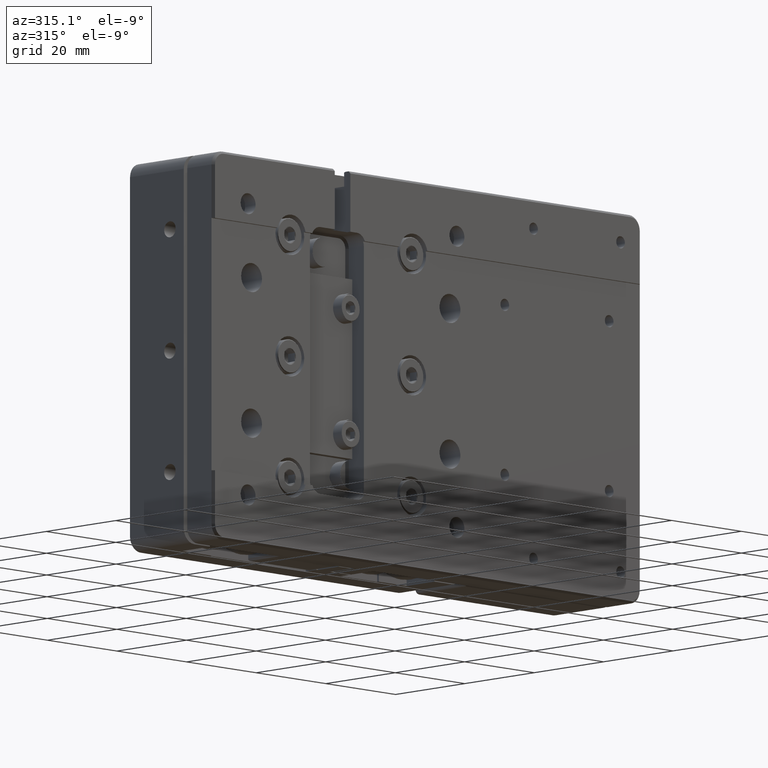
[diagram: clean part render]
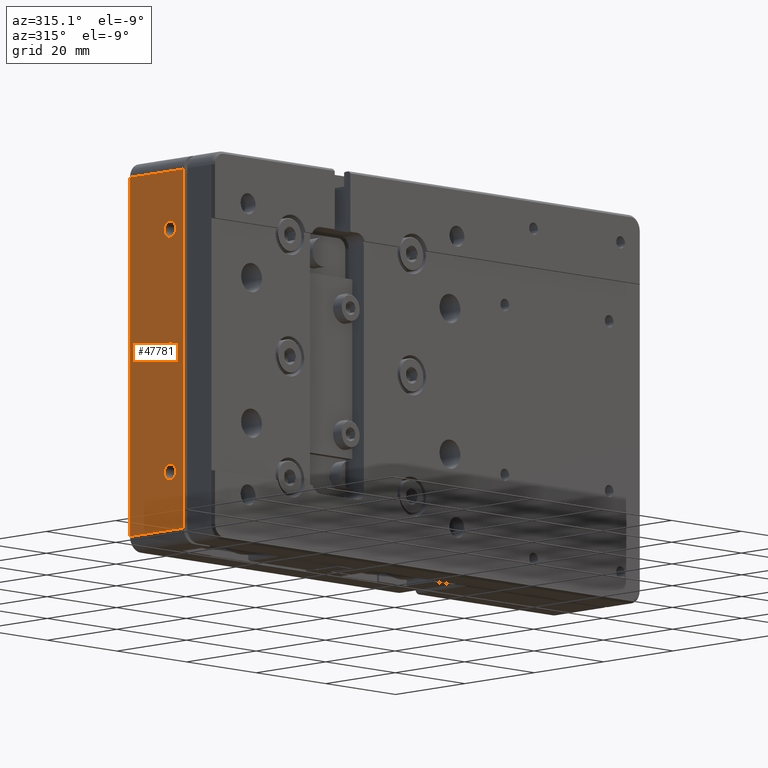
[diagram: same view with one face highlighted and labeled with its STEP entity id]
A machine part, auxiliary view. The second image highlights one B-rep face of the part: STEP entity #47781.
In plain terms, the highlighted planar face has unit normal (-1, 0, 0).
Its self-contained STEP definition (entity closure, byte-faithful):
#203 = CARTESIAN_POINT ( 'NONE',  ( -40.00000000000000000, 3.058924004469735900, -0.8329654315240088100 ) ) ;
#413 = ORIENTED_EDGE ( 'NONE', *, *, #56089, .T. ) ;
#474 = CARTESIAN_POINT ( 'NONE',  ( -40.00000000000000700, 4.929889373667207600, 23.39227319063466500 ) ) ;
#983 = CARTESIAN_POINT ( 'NONE',  ( -40.00000000000000000, 16.30999999999999900, -36.99999997173818400 ) ) ;
#1235 = ORIENTED_EDGE ( 'NONE', *, *, #55200, .T. ) ;
#1788 = B_SPLINE_CURVE_WITH_KNOTS ( 'NONE', 3,
 ( #19302, #39337, #29397, #64686, #34480, #4277, #39549, #9363, #44618, #14438 ),
 .UNSPECIFIED., .F., .F.,
 ( 4, 2, 2, 2, 4 ),
 ( 0.0000000000000000000, 0.2500000000000000000, 0.5000000000000000000, 0.7500000000000000000, 1.000000000000000000 ),
 .UNSPECIFIED. ) ;
#2072 = B_SPLINE_CURVE_WITH_KNOTS ( 'NONE', 3,
 ( #17379, #32545, #47740, #17607 ),
 .UNSPECIFIED., .F., .F.,
 ( 4, 4 ),
 ( 0.0000000000000000000, 1.000000000000000000 ),
 .UNSPECIFIED. ) ;
#2576 = EDGE_CURVE ( 'NONE', #32372, #51437, #26779, .T. ) ;
#3015 = VERTEX_POINT ( 'NONE', #25898 ) ;
#3455 = CARTESIAN_POINT ( 'NONE',  ( -40.00000000000000000, 2.891866257118795000, 0.4296525153654636700 ) ) ;
#3481 = CARTESIAN_POINT ( 'NONE',  ( -40.00000000000000000, 5.940668714406039700, -25.83320281143905500 ) ) ;
#3669 = CARTESIAN_POINT ( 'NONE',  ( -40.00000000000000000, 3.179166168521438100, -26.01241675606890500 ) ) ;
#3998 = CARTESIAN_POINT ( 'NONE',  ( -40.00002008473701700, 16.00001268401944500, 36.99999997929843700 ) ) ;
#4277 = CARTESIAN_POINT ( 'NONE',  ( -40.00000000000000000, 5.512618546438607000, -23.67896437815382900 ) ) ;
#4576 = CARTESIAN_POINT ( 'NONE',  ( -40.00000000000000700, 4.070110626332375900, 26.60772680936630200 ) ) ;
#4801 = EDGE_CURVE ( 'NONE', #45300, #40527, #19238, .T. ) ;
#4827 = CARTESIAN_POINT ( 'NONE',  ( -40.00000000000000000, 4.500000000000000900, 1.649999999999998600 ) ) ;
#4861 = CARTESIAN_POINT ( 'NONE',  ( -40.00000000000000000, 3.666973861529395000, 23.55925816782534500 ) ) ;
#5320 = CARTESIAN_POINT ( 'NONE',  ( -40.00000000000001400, 3.487381453563454900, -1.321035621847881800 ) ) ;
#5573 = CARTESIAN_POINT ( 'NONE',  ( -40.00000000000000000, 5.512416294201096400, 23.67916553507057400 ) ) ;
#6016 = CARTESIAN_POINT ( 'NONE',  ( -39.99999999999999300, 4.500000000000000900, -1.649999999999998600 ) ) ;
#6109 = DIRECTION ( 'NONE',  ( -0.0000000000000000000, -1.000000000000000000, 0.0000000000000000000 ) ) ;
#6242 = EDGE_CURVE ( 'NONE', #31857, #28975, #60181, .T. ) ;
#6769 = FACE_BOUND ( 'NONE', #21030, .T. ) ;
#8449 = CARTESIAN_POINT ( 'NONE',  ( -40.00000000000000000, 2.850000000000001900, -25.00000000000000000 ) ) ;
#8546 = CARTESIAN_POINT ( 'NONE',  ( -40.00000000000000000, 2.850000000000001900, -8.842972376470874500E-016 ) ) ;
#8561 = CARTESIAN_POINT ( 'NONE',  ( -40.00000000000000000, 6.150000000000000400, -25.21917662756495900 ) ) ;
#8745 = CARTESIAN_POINT ( 'NONE',  ( -40.00000000000000000, 3.666973861532512900, -26.44074183217535900 ) ) ;
#8895 = AXIS2_PLACEMENT_3D ( 'NONE', #51391, #56711, #26553 ) ;
#9363 = CARTESIAN_POINT ( 'NONE',  ( -40.00000000000000000, 4.929829188337036400, -23.39193937488811100 ) ) ;
#9668 = CARTESIAN_POINT ( 'NONE',  ( -39.99999999999998600, 3.487583705800479300, 26.32083446492962500 ) ) ;
#9835 = CARTESIAN_POINT ( 'NONE',  ( -40.00000000000000000, 4.500000000000000900, 26.64999999999999900 ) ) ;
#9954 = ORIENTED_EDGE ( 'NONE', *, *, #4801, .T. ) ;
#9956 = CARTESIAN_POINT ( 'NONE',  ( -40.00000000000000000, 4.280646699466616100, 23.35007311776862300 ) ) ;
#10226 = EDGE_CURVE ( 'NONE', #34256, #16964, #34254, .T. ) ;
#10406 = CARTESIAN_POINT ( 'NONE',  ( -40.00000000000001400, 4.070170811663381000, -1.608060625111196000 ) ) ;
#10639 = EDGE_LOOP ( 'NONE', ( #56236, #17916, #20860, #41047 ) ) ;
#10674 = CARTESIAN_POINT ( 'NONE',  ( -40.00000000000000000, 5.940668714406038800, 24.16679718856095200 ) ) ;
#11005 = CARTESIAN_POINT ( 'NONE',  ( -40.00002057467690300, 16.00001207603567700, -36.99999997120557500 ) ) ;
#11023 = EDGE_CURVE ( 'NONE', #59334, #31857, #34106, .T. ) ;
#11089 = CARTESIAN_POINT ( 'NONE',  ( -40.00000000000000000, 5.512416294201777600, -1.320834464928056600 ) ) ;
#11371 = CARTESIAN_POINT ( 'NONE',  ( -39.99999999999999300, 4.500000000000000900, -23.35000000000000100 ) ) ;
#12363 = EDGE_CURVE ( 'NONE', #15331, #46887, #19783, .T. ) ;
#13403 = CARTESIAN_POINT ( 'NONE',  ( -39.99999999999999300, 4.281746719864443700, 1.650072751096525000 ) ) ;
#13826 = CARTESIAN_POINT ( 'NONE',  ( -40.00000000000000000, 4.280646699463496000, -26.64992688223068700 ) ) ;
#13957 = CARTESIAN_POINT ( 'NONE',  ( -40.00000000000000700, 6.107726461760725200, 25.42988989527669800 ) ) ;
#14438 = CARTESIAN_POINT ( 'NONE',  ( -39.99999999999999300, 4.500000000000000900, -23.35000000000000100 ) ) ;
#14738 = CARTESIAN_POINT ( 'NONE',  ( -39.99999999999999300, 3.059331285593963400, 25.83320281144264600 ) ) ;
#15299 = CARTESIAN_POINT ( 'NONE',  ( -40.00000000000000000, 16.30999999999999900, 36.99999998252000200 ) ) ;
#15331 = VERTEX_POINT ( 'NONE', #57739 ) ;
#15491 = CARTESIAN_POINT ( 'NONE',  ( -39.99999999999999300, 4.500000000000000900, -1.649999999999998600 ) ) ;
#15754 = CARTESIAN_POINT ( 'NONE',  ( -40.00000000000000000, 6.150000000000000400, 24.78082337243505900 ) ) ;
#16175 = CARTESIAN_POINT ( 'NONE',  ( -40.00000000000000000, 5.940668714406039700, -0.8332028114387847200 ) ) ;
#16463 = CARTESIAN_POINT ( 'NONE',  ( -39.99999999999999300, 3.667034046862623200, -23.55892435207718800 ) ) ;
#16880 = VECTOR ( 'NONE', #55573, 1000.000000000000000 ) ;
#16964 = VERTEX_POINT ( 'NONE', #28230 ) ;
#17379 = CARTESIAN_POINT ( 'NONE',  ( -40.00002057467690300, 16.00001207603567700, -36.99999997120557500 ) ) ;
#17607 = CARTESIAN_POINT ( 'NONE',  ( -40.00002008473701700, 16.00001268401944500, 36.99999997929843700 ) ) ;
#17916 = ORIENTED_EDGE ( 'NONE', *, *, #35011, .T. ) ;
#18450 = LINE ( 'NONE', #15299, #16880 ) ;
#18511 = CARTESIAN_POINT ( 'NONE',  ( -39.99999999999999300, 4.718253280135846800, -26.65007275109583100 ) ) ;
#18706 = CARTESIAN_POINT ( 'NONE',  ( -40.00000000000000000, 2.850000000000001900, -25.00000000000000000 ) ) ;
#19028 = CARTESIAN_POINT ( 'NONE',  ( -40.00000000000000000, 5.820833831480210400, 26.01241675606692300 ) ) ;
#19238 = B_SPLINE_CURVE_WITH_KNOTS ( 'NONE', 3,
 ( #6016, #51143, #46094, #41256, #11089, #46326, #16175, #51364, #21212, #56461 ),
 .UNSPECIFIED., .F., .F.,
 ( 4, 2, 2, 2, 4 ),
 ( 0.0000000000000000000, 0.2500000000000000000, 0.5000000000000000000, 0.7500000000000000000, 1.000000000000000000 ),
 .UNSPECIFIED. ) ;
#19302 = CARTESIAN_POINT ( 'NONE',  ( -40.00000000000000000, 6.149999999999999500, -25.00000000000000000 ) ) ;
#19783 = B_SPLINE_CURVE_WITH_KNOTS ( 'NONE', 3,
 ( #43580, #13403, #23533, #58786, #28593, #63872, #33674, #3455, #38738, #8546 ),
 .UNSPECIFIED., .F., .F.,
 ( 4, 2, 2, 2, 4 ),
 ( 0.0000000000000000000, 0.2500000000000000000, 0.5000000000000000000, 0.7500000000000000000, 1.000000000000000000 ),
 .UNSPECIFIED. ) ;
#19811 = CARTESIAN_POINT ( 'NONE',  ( -39.99999999999999300, 2.850000000000001400, 25.21917662756135300 ) ) ;
#19843 = CARTESIAN_POINT ( 'NONE',  ( -40.00000000000000700, 6.107726461758055300, 0.4298898952790181100 ) ) ;
#20334 = CARTESIAN_POINT ( 'NONE',  ( -40.00000000000000000, 2.850000000000001900, -8.842972376470874500E-016 ) ) ;
#20860 = ORIENTED_EDGE ( 'NONE', *, *, #2576, .T. ) ;
#21030 = EDGE_LOOP ( 'NONE', ( #1235, #37154, #58277, #9954 ) ) ;
#21212 = CARTESIAN_POINT ( 'NONE',  ( -40.00000000000000000, 6.150000000000000400, -0.2191766275652141900 ) ) ;
#21503 = CARTESIAN_POINT ( 'NONE',  ( -40.00000000000000700, 3.178963916284312900, -23.98738208701570300 ) ) ;
#23533 = CARTESIAN_POINT ( 'NONE',  ( -40.00000000000000700, 4.070110626333168100, 1.607726809366057100 ) ) ;
#23555 = CARTESIAN_POINT ( 'NONE',  ( -39.99999999999999300, 4.500000000000000900, -26.64999999999999900 ) ) ;
#24078 = CARTESIAN_POINT ( 'NONE',  ( -40.00000000000000000, 5.333026138475662300, 26.44074183217327300 ) ) ;
#24130 = EDGE_CURVE ( 'NONE', #28975, #3015, #1788, .T. ) ;
#24648 = CARTESIAN_POINT ( 'NONE',  ( -40.00000000000000000, 4.500000000000000900, 26.64999999999999900 ) ) ;
#24899 = CARTESIAN_POINT ( 'NONE',  ( -40.00000000000000000, 5.820833831479251200, 1.012416756068214900 ) ) ;
#24939 = CARTESIAN_POINT ( 'NONE',  ( -40.00000000000000000, 2.850000000000001900, 25.00000000000000000 ) ) ;
#25898 = CARTESIAN_POINT ( 'NONE',  ( -39.99999999999999300, 4.500000000000000900, -23.35000000000000100 ) ) ;
#26553 = DIRECTION ( 'NONE',  ( 0.0000000000000000000, 0.0000000000000000000, 1.000000000000000000 ) ) ;
#26583 = CARTESIAN_POINT ( 'NONE',  ( -40.00000000000000700, 2.891866257118795000, -24.57034748463523500 ) ) ;
#26612 = ORIENTED_EDGE ( 'NONE', *, *, #55482, .F. ) ;
#26626 = EDGE_CURVE ( 'NONE', #3015, #59334, #63546, .T. ) ;
#26779 = B_SPLINE_CURVE_WITH_KNOTS ( 'NONE', 3,
 ( #24939, #55068, #60173, #29958, #65250, #35041, #4861, #40117, #9956, #45179 ),
 .UNSPECIFIED., .F., .F.,
 ( 4, 2, 2, 2, 4 ),
 ( 0.0000000000000000000, 0.2500000000000000000, 0.5000000000000000000, 0.7500000000000000000, 1.000000000000000000 ),
 .UNSPECIFIED. ) ;
#27479 = EDGE_LOOP ( 'NONE', ( #26612, #43671, #37979, #413 ) ) ;
#27762 = CARTESIAN_POINT ( 'NONE',  ( -40.00000000000000000, 4.500000000000000900, 23.35000000000000100 ) ) ;
#28230 = CARTESIAN_POINT ( 'NONE',  ( -40.00000000000000000, 0.4999999999999998900, 36.99999998208068100 ) ) ;
#28237 = VECTOR ( 'NONE', #6109, 1000.000000000000000 ) ;
#28277 = CARTESIAN_POINT ( 'NONE',  ( -39.99999999999999300, 4.500000000000000900, -1.649999999999998600 ) ) ;
#28427 = B_SPLINE_CURVE_WITH_KNOTS ( 'NONE', 3,
 ( #20334, #45204, #30423, #203, #35500, #5320, #40569, #10406, #45636, #15491 ),
 .UNSPECIFIED., .F., .F.,
 ( 4, 2, 2, 2, 4 ),
 ( 0.0000000000000000000, 0.2500000000000001100, 0.5000000000000002200, 0.7500000000000003300, 1.000000000000000000 ),
 .UNSPECIFIED. ) ;
#28593 = CARTESIAN_POINT ( 'NONE',  ( -40.00000000000000000, 3.487583705798862800, 1.320834464929037300 ) ) ;
#28614 = CARTESIAN_POINT ( 'NONE',  ( -40.00000000000000000, 5.332965953138777400, -26.44107564792142300 ) ) ;
#28827 = VERTEX_POINT ( 'NONE', #37598 ) ;
#28975 = VERTEX_POINT ( 'NONE', #59583 ) ;
#29136 = CARTESIAN_POINT ( 'NONE',  ( -40.00000000000000000, 4.719353300528337200, 26.64992688223275200 ) ) ;
#29397 = CARTESIAN_POINT ( 'NONE',  ( -40.00000000000000700, 6.107726461757909700, -24.57011010471979900 ) ) ;
#29924 = CARTESIAN_POINT ( 'NONE',  ( -40.00000000000000000, 5.333026138466799200, 1.440741832176043700 ) ) ;
#29958 = CARTESIAN_POINT ( 'NONE',  ( -40.00000000000000000, 3.058924004470109800, 24.16703456847837500 ) ) ;
#30423 = CARTESIAN_POINT ( 'NONE',  ( -40.00000000000000000, 2.892273538243019400, -0.4298898952807896900 ) ) ;
#30684 = CARTESIAN_POINT ( 'NONE',  ( -39.99999999999999300, 4.718253280137511200, 23.34992724890485900 ) ) ;
#30705 = ORIENTED_EDGE ( 'NONE', *, *, #11023, .T. ) ;
#31604 = CARTESIAN_POINT ( 'NONE',  ( -40.00000000000000000, 2.850000000000001900, -25.00000000000000000 ) ) ;
#31857 = VERTEX_POINT ( 'NONE', #41396 ) ;
#31980 = FACE_OUTER_BOUND ( 'NONE', #27479, .T. ) ;
#32369 = B_SPLINE_CURVE_WITH_KNOTS ( 'NONE', 3,
 ( #60898, #30684, #474, #35761, #5573, #40831, #10674, #45894, #15754, #50947 ),
 .UNSPECIFIED., .F., .F.,
 ( 4, 2, 2, 2, 4 ),
 ( 0.0000000000000000000, 0.2500000000000000000, 0.5000000000000000000, 0.7500000000000000000, 1.000000000000000000 ),
 .UNSPECIFIED. ) ;
#32372 = VERTEX_POINT ( 'NONE', #40885 ) ;
#32545 = CARTESIAN_POINT ( 'NONE',  ( -40.00000781230418300, 15.99999218769581900, -12.33333331913152800 ) ) ;
#33674 = CARTESIAN_POINT ( 'NONE',  ( -40.00000000000000000, 3.059331285593963400, 0.8332028114393352800 ) ) ;
#33698 = CARTESIAN_POINT ( 'NONE',  ( -40.00000000000000000, 5.821036083714996100, -26.01261791298500000 ) ) ;
#33872 = CARTESIAN_POINT ( 'NONE',  ( -40.00000000000000000, 3.058924004471885700, -25.83296543152685100 ) ) ;
#34106 = B_SPLINE_CURVE_WITH_KNOTS ( 'NONE', 3,
 ( #18706, #58770, #64071, #33872, #3669, #38941, #8745, #43997, #13826, #49036 ),
 .UNSPECIFIED., .F., .F.,
 ( 4, 2, 2, 2, 4 ),
 ( 0.0000000000000000000, 0.2500000000000000000, 0.5000000000000000000, 0.7500000000000000000, 1.000000000000000000 ),
 .UNSPECIFIED. ) ;
#34254 = LINE ( 'NONE', #43754, #61075 ) ;
#34256 = VERTEX_POINT ( 'NONE', #58899 ) ;
#34480 = CARTESIAN_POINT ( 'NONE',  ( -40.00000000000000000, 5.820833831476997000, -23.98758324393056200 ) ) ;
#34770 = CARTESIAN_POINT ( 'NONE',  ( -39.99999999999999300, 4.281746719856379000, 26.65007275109375900 ) ) ;
#35002 = CARTESIAN_POINT ( 'NONE',  ( -40.00000000000000000, 4.719353300537201300, 1.649926882229988800 ) ) ;
#35011 = EDGE_CURVE ( 'NONE', #41340, #32372, #61502, .T. ) ;
#35041 = CARTESIAN_POINT ( 'NONE',  ( -40.00000000000000000, 3.487381453558081400, 23.67896437815472800 ) ) ;
#35500 = CARTESIAN_POINT ( 'NONE',  ( -40.00000000000000000, 3.179166168520942900, -1.012416756067719700 ) ) ;
#35761 = CARTESIAN_POINT ( 'NONE',  ( -40.00000000000000000, 5.332965953137589000, 23.55892435207809400 ) ) ;
#36774 = EDGE_LOOP ( 'NONE', ( #43400, #38184, #30705, #46428 ) ) ;
#36811 = EDGE_CURVE ( 'NONE', #64017, #34256, #41633, .T. ) ;
#37154 = ORIENTED_EDGE ( 'NONE', *, *, #12363, .T. ) ;
#37206 = EDGE_CURVE ( 'NONE', #51437, #28827, #32369, .T. ) ;
#37598 = CARTESIAN_POINT ( 'NONE',  ( -40.00000000000000000, 6.149999999999999500, 25.00000000000000000 ) ) ;
#37979 = ORIENTED_EDGE ( 'NONE', *, *, #10226, .T. ) ;
#38184 = ORIENTED_EDGE ( 'NONE', *, *, #26626, .T. ) ;
#38545 = CARTESIAN_POINT ( 'NONE',  ( -40.00000000000000700, 4.929889373666021000, -26.60772680936582900 ) ) ;
#38738 = CARTESIAN_POINT ( 'NONE',  ( -40.00000000000000000, 2.850000000000001900, 0.2191766275646637700 ) ) ;
#38759 = CARTESIAN_POINT ( 'NONE',  ( -40.00000000000000000, 6.108133742881206800, -25.42965251536575600 ) ) ;
#38941 = CARTESIAN_POINT ( 'NONE',  ( -40.00000000000000000, 3.487381453562958800, -26.32103562184670100 ) ) ;
#39337 = CARTESIAN_POINT ( 'NONE',  ( -39.99999999999999300, 6.149999999999999500, -24.78157107861660400 ) ) ;
#39549 = CARTESIAN_POINT ( 'NONE',  ( -40.00000000000000000, 5.333026138467763700, -23.55925816782464100 ) ) ;
#39842 = CARTESIAN_POINT ( 'NONE',  ( -39.99999999999998600, 3.667034046862826600, 26.44107564792094300 ) ) ;
#40117 = CARTESIAN_POINT ( 'NONE',  ( -40.00000000000000000, 4.070170811665818200, 23.39193937488741800 ) ) ;
#40527 = VERTEX_POINT ( 'NONE', #51130 ) ;
#40569 = CARTESIAN_POINT ( 'NONE',  ( -40.00000000000000000, 3.666973861531827700, -1.440741832176043200 ) ) ;
#40831 = CARTESIAN_POINT ( 'NONE',  ( -40.00000000000000000, 5.821036083714508500, 23.98738208701383100 ) ) ;
#40885 = CARTESIAN_POINT ( 'NONE',  ( -40.00000000000000000, 2.850000000000001900, 25.00000000000000000 ) ) ;
#41047 = ORIENTED_EDGE ( 'NONE', *, *, #37206, .T. ) ;
#41256 = CARTESIAN_POINT ( 'NONE',  ( -40.00000000000000000, 5.332965953135503600, -1.441075647923295600 ) ) ;
#41340 = VERTEX_POINT ( 'NONE', #9835 ) ;
#41396 = CARTESIAN_POINT ( 'NONE',  ( -39.99999999999999300, 4.500000000000000900, -26.64999999999999900 ) ) ;
#41549 = CARTESIAN_POINT ( 'NONE',  ( -39.99999999999999300, 4.281746719866128500, -23.34992724890416600 ) ) ;
#41633 = LINE ( 'NONE', #983, #28237 ) ;
#43400 = ORIENTED_EDGE ( 'NONE', *, *, #24130, .T. ) ;
#43580 = CARTESIAN_POINT ( 'NONE',  ( -40.00000000000000000, 4.500000000000000900, 1.649999999999998600 ) ) ;
#43671 = ORIENTED_EDGE ( 'NONE', *, *, #36811, .T. ) ;
#43754 = CARTESIAN_POINT ( 'NONE',  ( -40.00000000000000000, 0.5000000000000004400, -38.47999999999999700 ) ) ;
#43812 = CARTESIAN_POINT ( 'NONE',  ( -40.00000000000000000, 6.149999999999999500, -25.00000000000000000 ) ) ;
#43997 = CARTESIAN_POINT ( 'NONE',  ( -40.00000000000000000, 4.070170811662698000, -26.60806062511190000 ) ) ;
#44618 = CARTESIAN_POINT ( 'NONE',  ( -40.00000000000000000, 4.719353300536236700, -23.35007311776932700 ) ) ;
#44905 = CARTESIAN_POINT ( 'NONE',  ( -39.99999999999998600, 3.178963916283915800, 26.01261791298598100 ) ) ;
#44924 = B_SPLINE_CURVE_WITH_KNOTS ( 'NONE', 3,
 ( #44934, #49954, #19843, #55033, #24899, #60142, #29924, #65215, #35002, #4827 ),
 .UNSPECIFIED., .F., .F.,
 ( 4, 2, 2, 2, 4 ),
 ( 0.0000000000000000000, 0.2500000000000000000, 0.5000000000000000000, 0.7500000000000000000, 1.000000000000000000 ),
 .UNSPECIFIED. ) ;
#44934 = CARTESIAN_POINT ( 'NONE',  ( -40.00000000000000000, 6.149999999999999500, 5.051668046482827600E-017 ) ) ;
#45179 = CARTESIAN_POINT ( 'NONE',  ( -40.00000000000000000, 4.500000000000000900, 23.35000000000000100 ) ) ;
#45204 = CARTESIAN_POINT ( 'NONE',  ( -39.99999999999999300, 2.850000000000002800, -0.2184289213817274800 ) ) ;
#45209 = B_SPLINE_CURVE_WITH_KNOTS ( 'NONE', 3,
 ( #59123, #64195, #13957, #49159, #19028, #54235, #24078, #59338, #29136, #64425 ),
 .UNSPECIFIED., .F., .F.,
 ( 4, 2, 2, 2, 4 ),
 ( 0.0000000000000000000, 0.2500000000000000000, 0.5000000000000000000, 0.7500000000000000000, 1.000000000000000000 ),
 .UNSPECIFIED. ) ;
#45300 = VERTEX_POINT ( 'NONE', #28277 ) ;
#45362 = EDGE_CURVE ( 'NONE', #28827, #41340, #45209, .T. ) ;
#45388 = FACE_BOUND ( 'NONE', #10639, .T. ) ;
#45636 = CARTESIAN_POINT ( 'NONE',  ( -40.00000000000000000, 4.280646699464180700, -1.649926882229988600 ) ) ;
#45894 = CARTESIAN_POINT ( 'NONE',  ( -40.00000000000000000, 6.108133742881206800, 24.57034748463425800 ) ) ;
#46094 = CARTESIAN_POINT ( 'NONE',  ( -40.00000000000000700, 4.929889373669292100, -1.607726809363943600 ) ) ;
#46326 = CARTESIAN_POINT ( 'NONE',  ( -40.00000000000000000, 5.821036083713829100, -1.012617912987544800 ) ) ;
#46428 = ORIENTED_EDGE ( 'NONE', *, *, #6242, .T. ) ;
#46602 = CARTESIAN_POINT ( 'NONE',  ( -39.99999999999999300, 4.070110626332579300, -23.39227319063555300 ) ) ;
#46887 = VERTEX_POINT ( 'NONE', #51529 ) ;
#47740 = CARTESIAN_POINT ( 'NONE',  ( -40.00000781230418300, 15.99999218769581900, 12.33333333081552900 ) ) ;
#47781 = ADVANCED_FACE ( 'NONE', ( #31980, #62006, #6769, #45388 ), #51631, .T. ) ;
#49036 = CARTESIAN_POINT ( 'NONE',  ( -39.99999999999999300, 4.500000000000000900, -26.64999999999999900 ) ) ;
#49159 = CARTESIAN_POINT ( 'NONE',  ( -40.00000000000000000, 5.941075995526516900, 25.83296543152809500 ) ) ;
#49923 = CARTESIAN_POINT ( 'NONE',  ( -40.00000000000000000, 2.891866257118794100, 25.42965251536215400 ) ) ;
#49954 = CARTESIAN_POINT ( 'NONE',  ( -39.99999999999999300, 6.149999999999999500, 0.2184289213825601500 ) ) ;
#50947 = CARTESIAN_POINT ( 'NONE',  ( -40.00000000000000000, 6.149999999999999500, 25.00000000000000000 ) ) ;
#51130 = CARTESIAN_POINT ( 'NONE',  ( -40.00000000000000000, 6.149999999999999500, 5.051668046482827600E-017 ) ) ;
#51143 = CARTESIAN_POINT ( 'NONE',  ( -39.99999999999999300, 4.718253280132894500, -1.650072751096525400 ) ) ;
#51364 = CARTESIAN_POINT ( 'NONE',  ( -40.00000000000000000, 6.108133742881206800, -0.4296525153660141200 ) ) ;
#51391 = CARTESIAN_POINT ( 'NONE',  ( -40.00000000000000000, 16.30999999999999900, -38.47999999999999700 ) ) ;
#51437 = VERTEX_POINT ( 'NONE', #27762 ) ;
#51529 = CARTESIAN_POINT ( 'NONE',  ( -40.00000000000000000, 2.850000000000001900, -8.842972376470874500E-016 ) ) ;
#51631 = PLANE ( 'NONE',  #8895 ) ;
#51665 = CARTESIAN_POINT ( 'NONE',  ( -40.00000000000000700, 3.487583705800088500, -23.67916553506872300 ) ) ;
#52696 = EDGE_CURVE ( 'NONE', #46887, #45300, #28427, .T. ) ;
#53876 = DIRECTION ( 'NONE',  ( 0.0000000000000000000, 0.0000000000000000000, 1.000000000000000000 ) ) ;
#54235 = CARTESIAN_POINT ( 'NONE',  ( -40.00000000000000000, 5.512618546435392700, 26.32103562184870100 ) ) ;
#55008 = CARTESIAN_POINT ( 'NONE',  ( -40.00000000000000000, 2.850000000000001900, 25.00000000000000000 ) ) ;
#55033 = CARTESIAN_POINT ( 'NONE',  ( -40.00000000000000000, 5.941075995529186700, 0.8329654315257806200 ) ) ;
#55068 = CARTESIAN_POINT ( 'NONE',  ( -39.99999999999999300, 2.850000000000002300, 24.78157107861495600 ) ) ;
#55200 = EDGE_CURVE ( 'NONE', #40527, #15331, #44924, .T. ) ;
#55482 = EDGE_CURVE ( 'NONE', #64017, #59418, #2072, .T. ) ;
#55573 = DIRECTION ( 'NONE',  ( 0.0000000000000000000, 1.000000000000000000, -0.0000000000000000000 ) ) ;
#56089 = EDGE_CURVE ( 'NONE', #16964, #59418, #18450, .T. ) ;
#56236 = ORIENTED_EDGE ( 'NONE', *, *, #45362, .T. ) ;
#56461 = CARTESIAN_POINT ( 'NONE',  ( -40.00000000000000000, 6.149999999999999500, 5.051668046482827600E-017 ) ) ;
#56711 = DIRECTION ( 'NONE',  ( -1.000000000000000000, 0.0000000000000000000, 0.0000000000000000000 ) ) ;
#56742 = CARTESIAN_POINT ( 'NONE',  ( -40.00000000000000000, 3.059331285593964300, -24.16679718855998300 ) ) ;
#57739 = CARTESIAN_POINT ( 'NONE',  ( -40.00000000000000000, 4.500000000000000900, 1.649999999999998600 ) ) ;
#58277 = ORIENTED_EDGE ( 'NONE', *, *, #52696, .T. ) ;
#58770 = CARTESIAN_POINT ( 'NONE',  ( -39.99999999999999300, 2.850000000000002800, -25.21842892138408800 ) ) ;
#58786 = CARTESIAN_POINT ( 'NONE',  ( -40.00000000000000000, 3.667034046862034800, 1.441075647921181300 ) ) ;
#58899 = CARTESIAN_POINT ( 'NONE',  ( -40.00000000000000000, 0.5000000000000003300, -36.99999997847685100 ) ) ;
#59123 = CARTESIAN_POINT ( 'NONE',  ( -40.00000000000000000, 6.149999999999999500, 25.00000000000000000 ) ) ;
#59334 = VERTEX_POINT ( 'NONE', #8449 ) ;
#59338 = CARTESIAN_POINT ( 'NONE',  ( -40.00000000000000000, 4.929829188329137900, 26.60806062511396400 ) ) ;
#59418 = VERTEX_POINT ( 'NONE', #3998 ) ;
#59583 = CARTESIAN_POINT ( 'NONE',  ( -40.00000000000000000, 6.149999999999999500, -25.00000000000000000 ) ) ;
#60142 = CARTESIAN_POINT ( 'NONE',  ( -40.00000000000000000, 5.512618546436350200, 1.321035621847386200 ) ) ;
#60173 = CARTESIAN_POINT ( 'NONE',  ( -40.00000000000000700, 2.892273538242645400, 24.57011010471682500 ) ) ;
#60181 = B_SPLINE_CURVE_WITH_KNOTS ( 'NONE', 3,
 ( #23555, #18511, #38545, #28614, #63890, #33698, #3481, #38759, #8561, #43812 ),
 .UNSPECIFIED., .F., .F.,
 ( 4, 2, 2, 2, 4 ),
 ( 0.0000000000000000000, 0.2500000000000000000, 0.5000000000000000000, 0.7500000000000000000, 1.000000000000000000 ),
 .UNSPECIFIED. ) ;
#60898 = CARTESIAN_POINT ( 'NONE',  ( -40.00000000000000000, 4.500000000000000900, 23.35000000000000100 ) ) ;
#61075 = VECTOR ( 'NONE', #53876, 1000.000000000000000 ) ;
#61502 = B_SPLINE_CURVE_WITH_KNOTS ( 'NONE', 3,
 ( #24648, #34770, #4576, #39842, #9668, #44905, #14738, #49923, #19811, #55008 ),
 .UNSPECIFIED., .F., .F.,
 ( 4, 2, 2, 2, 4 ),
 ( 0.0000000000000000000, 0.2500000000000003300, 0.5000000000000002200, 0.7500000000000001100, 1.000000000000000000 ),
 .UNSPECIFIED. ) ;
#61842 = CARTESIAN_POINT ( 'NONE',  ( -40.00000000000000000, 2.850000000000001900, -24.78082337243603600 ) ) ;
#62006 = FACE_BOUND ( 'NONE', #36774, .T. ) ;
#63546 = B_SPLINE_CURVE_WITH_KNOTS ( 'NONE', 3,
 ( #11371, #41549, #46602, #16463, #51665, #21503, #56742, #26583, #61842, #31604 ),
 .UNSPECIFIED., .F., .F.,
 ( 4, 2, 2, 2, 4 ),
 ( 0.0000000000000000000, 0.2499999999999996700, 0.4999999999999997800, 0.7499999999999998900, 1.000000000000000000 ),
 .UNSPECIFIED. ) ;
#63872 = CARTESIAN_POINT ( 'NONE',  ( -40.00000000000000000, 3.178963916285536800, 1.012617912986564000 ) ) ;
#63890 = CARTESIAN_POINT ( 'NONE',  ( -40.00000000000000000, 5.512416294200609600, -26.32083446493061300 ) ) ;
#64017 = VERTEX_POINT ( 'NONE', #11005 ) ;
#64071 = CARTESIAN_POINT ( 'NONE',  ( -40.00000000000000700, 2.892273538240869500, -25.42988989527793500 ) ) ;
#64195 = CARTESIAN_POINT ( 'NONE',  ( -39.99999999999999300, 6.149999999999997700, 25.21842892138671000 ) ) ;
#64425 = CARTESIAN_POINT ( 'NONE',  ( -40.00000000000000000, 4.500000000000000900, 26.64999999999999900 ) ) ;
#64686 = CARTESIAN_POINT ( 'NONE',  ( -40.00000000000000000, 5.941075995529333300, -24.16703456847540500 ) ) ;
#65215 = CARTESIAN_POINT ( 'NONE',  ( -40.00000000000000000, 4.929829188338001900, 1.608060625111195700 ) ) ;
#65250 = CARTESIAN_POINT ( 'NONE',  ( -40.00000000000000000, 3.179166168526310600, 23.98758324392964900 ) ) ;